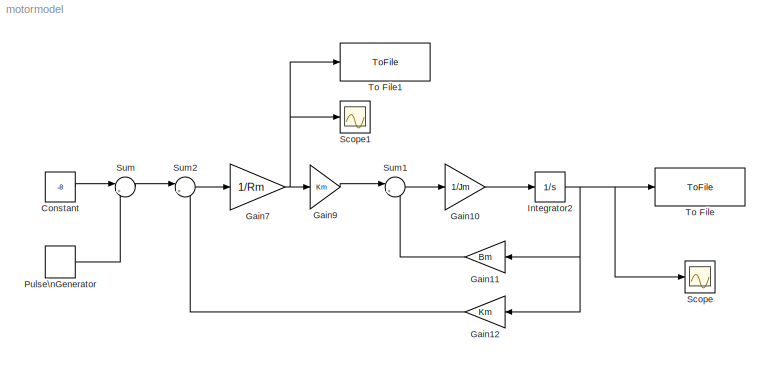
MODEL motormodel
KIND model
BLOCK [Constant] Constant
  OutDataType = fixdt(1, 16)
  OutScaling = 2^0
  SID = 4
  Value = -8
BLOCK [Gain] Gain10
  Gain = 1/Jm
  OutDataType = fixdt(1, 16)
  OutDataTypeMode = Inherit via internal rule
  OutDataTypeStr = Inherit: Inherit via internal rule
  OutScaling = 2^0
  ParamDataTypeStr = Inherit: Inherit via internal rule
  ParameterDataType = fixdt(1, 16)
  ParameterDataTypeMode = Inherit via internal rule
  ParameterScaling = 2^0
  SID = 15
  SaturateOnIntegerOverflow = off
BLOCK [Gain] Gain11
  Gain = Bm
  OutDataType = fixdt(1, 16)
  OutDataTypeMode = Inherit via internal rule
  OutDataTypeStr = Inherit: Inherit via internal rule
  OutScaling = 2^0
  ParamDataTypeStr = Inherit: Inherit via internal rule
  ParameterDataType = fixdt(1, 16)
  ParameterDataTypeMode = Inherit via internal rule
  ParameterScaling = 2^0
  SID = 16
  SaturateOnIntegerOverflow = off
BLOCK [Gain] Gain12
  Gain = Km
  OutDataType = fixdt(1, 16)
  OutDataTypeMode = Inherit via internal rule
  OutDataTypeStr = Inherit: Inherit via internal rule
  OutScaling = 2^0
  ParamDataTypeStr = Inherit: Inherit via internal rule
  ParameterDataType = fixdt(1, 16)
  ParameterDataTypeMode = Inherit via internal rule
  ParameterScaling = 2^0
  SID = 17
  SaturateOnIntegerOverflow = off
BLOCK [Gain] Gain7
  Gain = 1/Rm
  OutDataType = fixdt(1, 16)
  OutDataTypeMode = Inherit via internal rule
  OutDataTypeStr = Inherit: Inherit via internal rule
  OutScaling = 2^0
  ParamDataTypeStr = Inherit: Inherit via internal rule
  ParameterDataType = fixdt(1, 16)
  ParameterDataTypeMode = Inherit via internal rule
  ParameterScaling = 2^0
  SID = 18
  SaturateOnIntegerOverflow = off
BLOCK [Gain] Gain9
  Gain = Km
  OutDataType = fixdt(1, 16)
  OutDataTypeMode = Inherit via internal rule
  OutDataTypeStr = Inherit: Inherit via internal rule
  OutScaling = 2^0
  ParamDataTypeStr = Inherit: Inherit via internal rule
  ParameterDataType = fixdt(1, 16)
  ParameterDataTypeMode = Inherit via internal rule
  ParameterScaling = 2^0
  SID = 19
  SaturateOnIntegerOverflow = off
BLOCK [Integrator] Integrator2
  Ports = [1, 1]
  SID = 20
BLOCK [DiscretePulseGenerator] Pulse\nGenerator
  Amplitude = 16
  Period = 4
  PhaseDelay = 0
  Ports = [0, 1]
  PulseType = Time based
  PulseWidth = 50
  SID = 3
  SampleTime = 1
BLOCK [Scope] Scope
  DataFormat = StructureWithTime
  Floating = off
  NumInputPorts = 1
  Ports = [1]
  SID = 13
  SampleTime = 0
BLOCK [Scope] Scope1
  DataFormat = StructureWithTime
  Floating = off
  NumInputPorts = 1
  Ports = [1]
  SID = 26
  SampleTime = 0
  SaveName = ScopeData1
BLOCK [Sum] Sum
  IconShape = round
  InputSameDT = off
  Inputs = |++
  OutDataType = fixdt(1, 16)
  OutDataTypeMode = Inherit via internal rule
  OutDataTypeStr = Inherit: Inherit via internal rule
  OutScaling = 2^0
  Ports = [2, 1]
  SID = 5
  SaturateOnIntegerOverflow = off
BLOCK [Sum] Sum1
  IconShape = round
  InputSameDT = off
  Inputs = |+-
  OutDataType = fixdt(1, 16)
  OutDataTypeMode = Inherit via internal rule
  OutDataTypeStr = Inherit: Inherit via internal rule
  OutScaling = 2^0
  Ports = [2, 1]
  SID = 24
  SaturateOnIntegerOverflow = off
BLOCK [Sum] Sum2
  IconShape = round
  InputSameDT = off
  Inputs = |+-
  OutDataType = fixdt(1, 16)
  OutDataTypeMode = Inherit via internal rule
  OutDataTypeStr = Inherit: Inherit via internal rule
  OutScaling = 2^0
  Ports = [2, 1]
  SID = 25
  SaturateOnIntegerOverflow = off
BLOCK [ToFile] To File
  Filename = motorsimu.mat
  SID = 8
  SampleTime = 0.01
BLOCK [ToFile] To File1
  Filename = motorsimu1.mat
  SID = 27
  SampleTime = 0.01
LINE Constant:1 -> Sum:1
LINE Gain10:1 -> Integrator2:1
LINE Gain11:1 -> Sum1:2
LINE Gain12:1 -> Sum2:2
NET Gain7:1 -> Gain9:1, Scope1:1, To File1:1
LINE Gain9:1 -> Sum1:1
NET Integrator2:1 -> Gain11:1, Gain12:1, Scope:1, To File:1
LINE Pulse\nGenerator:1 -> Sum:2
LINE Sum1:1 -> Gain10:1
LINE Sum2:1 -> Gain7:1
LINE Sum:1 -> Sum2:1
note: NET lines group one-source signal fan-out (src -> all destinations, sorted); 1:1 wires keep LINE
